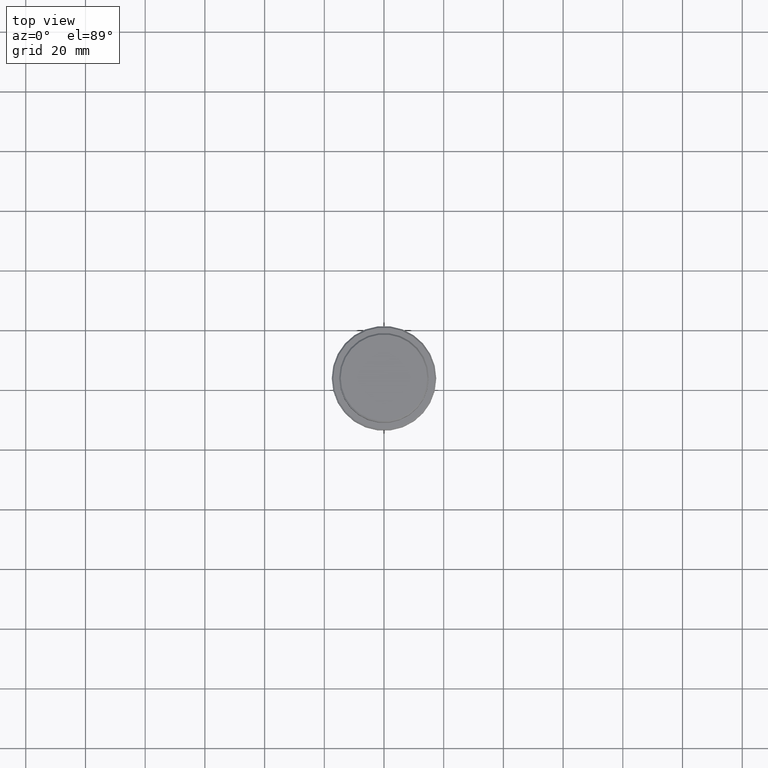
[diagram: clean part render]
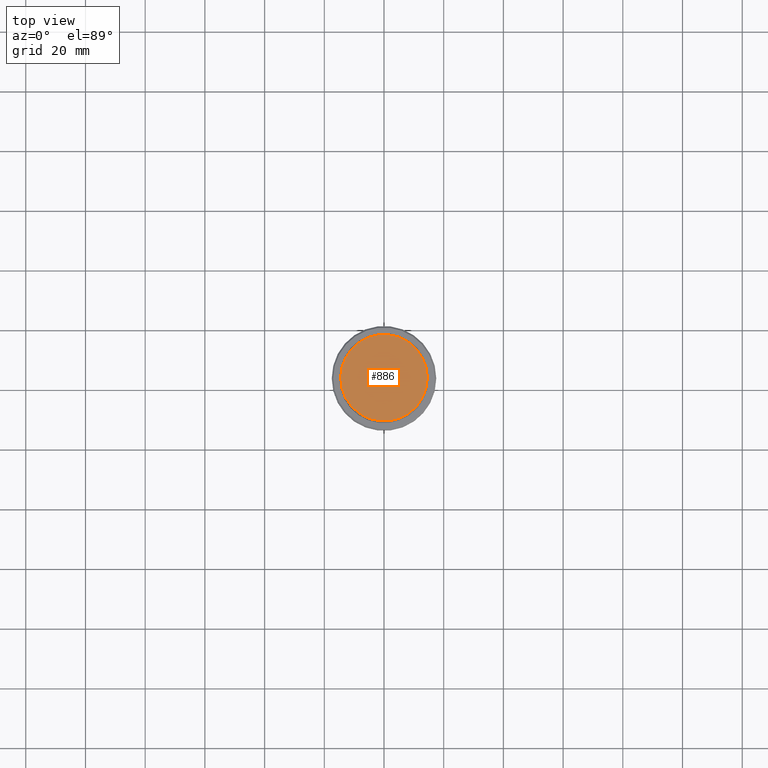
[diagram: same view with one face highlighted and labeled with its STEP entity id]
A machine part, top view. The second image highlights one B-rep face of the part: STEP entity #886.
In plain terms, the highlighted planar face has unit normal (0, -0, 1).
Its self-contained STEP definition (entity closure, byte-faithful):
#105 = EDGE_CURVE ( 'NONE', #1340, #241, #308, .T. ) ;
#178 = CARTESIAN_POINT ( 'NONE',  ( 0.000000000000000000, 0.000000000000000000, 0.000000000000000000 ) ) ;
#222 = DIRECTION ( 'NONE',  ( -0.000000000000000000, -0.000000000000000000, 1.000000000000000000 ) ) ;
#226 = DIRECTION ( 'NONE',  ( 1.000000000000000000, 0.000000000000000000, 0.000000000000000000 ) ) ;
#241 = VERTEX_POINT ( 'NONE', #1025 ) ;
#308 = CIRCLE ( 'NONE', #1318, 14.50000000000003908 ) ;
#340 = CARTESIAN_POINT ( 'NONE',  ( 0.000000000000000000, 0.000000000000000000, 0.000000000000000000 ) ) ;
#470 = DIRECTION ( 'NONE',  ( -0.000000000000000000, -0.000000000000000000, 1.000000000000000000 ) ) ;
#631 = CIRCLE ( 'NONE', #1410, 14.50000000000003908 ) ;
#773 = ORIENTED_EDGE ( 'NONE', *, *, #976, .T. ) ;
#886 = ADVANCED_FACE ( 'NONE', ( #1312 ), #1295, .T. ) ;
#976 = EDGE_CURVE ( 'NONE', #241, #1340, #631, .T. ) ;
#1011 = AXIS2_PLACEMENT_3D ( 'NONE', #340, #1202, #226 ) ;
#1023 = DIRECTION ( 'NONE',  ( 1.000000000000000000, 0.000000000000000000, 0.000000000000000000 ) ) ;
#1025 = CARTESIAN_POINT ( 'NONE',  ( -14.50000000000003908, 0.000000000000000000, 0.000000000000000000 ) ) ;
#1180 = CARTESIAN_POINT ( 'NONE',  ( 0.000000000000000000, 0.000000000000000000, 0.000000000000000000 ) ) ;
#1202 = DIRECTION ( 'NONE',  ( 0.000000000000000000, -0.000000000000000000, 1.000000000000000000 ) ) ;
#1288 = CARTESIAN_POINT ( 'NONE',  ( 14.50000000000003908, 1.806354028742348168E-15, 0.000000000000000000 ) ) ;
#1295 = PLANE ( 'NONE',  #1011 ) ;
#1312 = FACE_OUTER_BOUND ( 'NONE', #1375, .T. ) ;
#1318 = AXIS2_PLACEMENT_3D ( 'NONE', #1180, #222, #1415 ) ;
#1340 = VERTEX_POINT ( 'NONE', #1288 ) ;
#1375 = EDGE_LOOP ( 'NONE', ( #773, #1385 ) ) ;
#1385 = ORIENTED_EDGE ( 'NONE', *, *, #105, .T. ) ;
#1410 = AXIS2_PLACEMENT_3D ( 'NONE', #178, #470, #1023 ) ;
#1415 = DIRECTION ( 'NONE',  ( 1.000000000000000000, 0.000000000000000000, 0.000000000000000000 ) ) ;